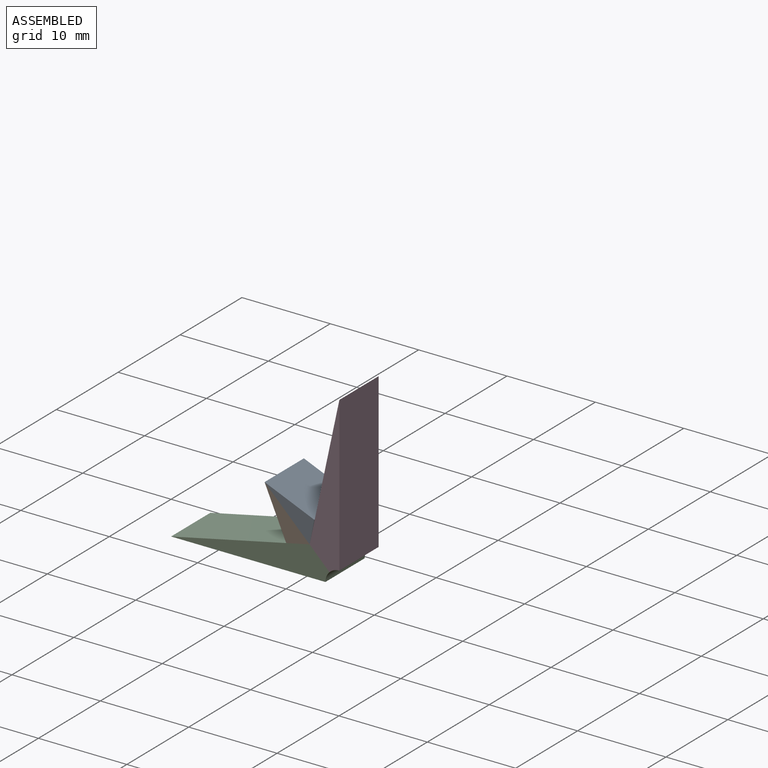
[diagram: assembled view]
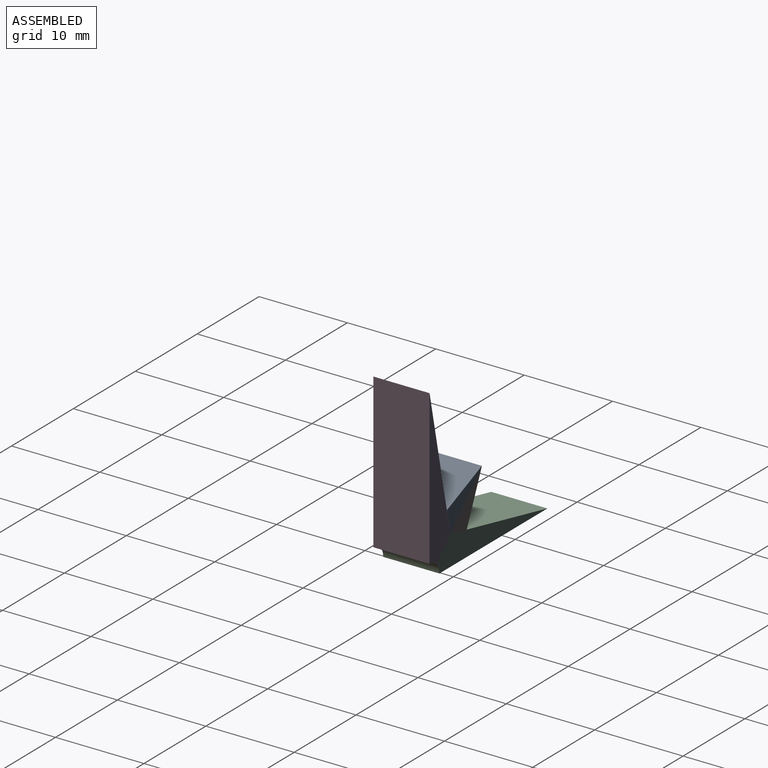
[diagram: assembled view, second angle]
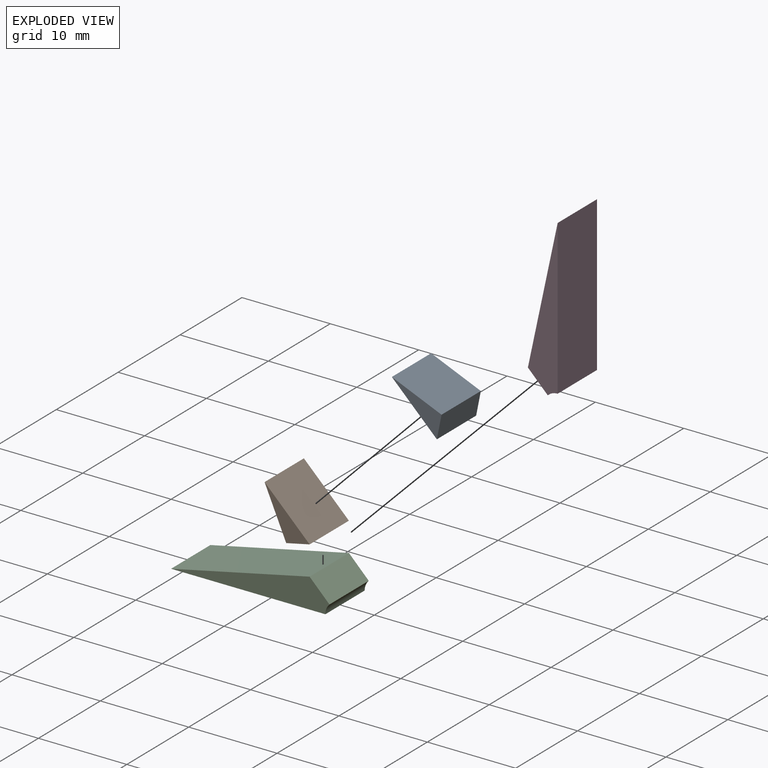
[diagram: exploded view]
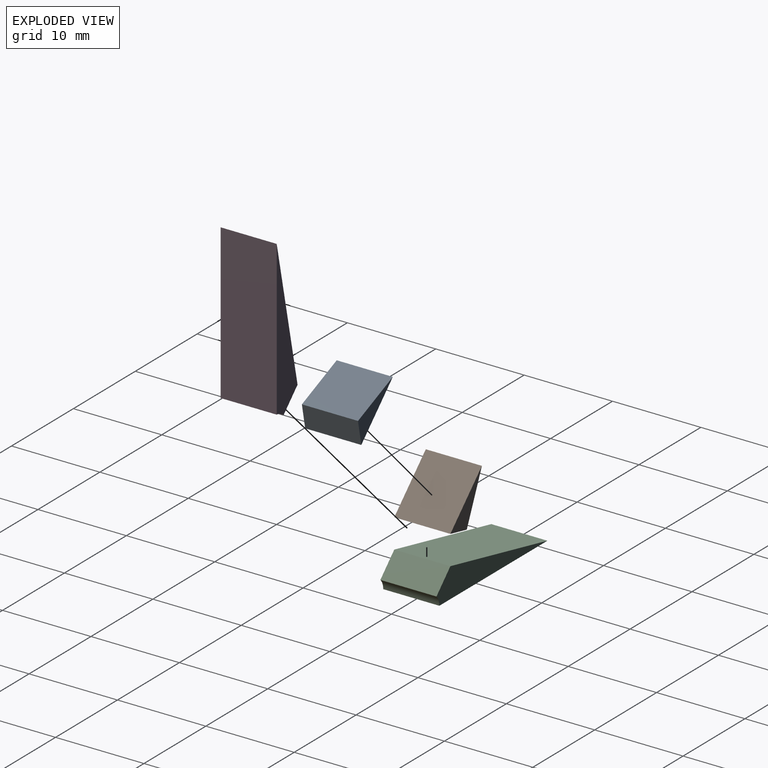
[diagram: exploded view, second angle]
ASSEMBLY  parts=4 mates=3
PART A: 5 faces, bbox 5.1x6.4x5.6 mm
  f0: plane 6.35x2.65mm, normal (0.2,0,-0.98), area 17.2mm2, adj f1,f2,f3,f4
  f1: plane 6.35x5.06mm, normal (0.71,0,0.71), area 45.4mm2, adj f0,f2,f3,f4
  f2: plane 6.35x5.61mm, normal (-0.92,0,-0.39), area 38.7mm2, adj f0,f1,f3,f4
  f3: plane 5.61x5.06mm, normal (0,-1,0), area 8.1mm2, adj f0,f1,f2
  f4: plane 5.61x5.06mm, normal (0,1,0), area 8.1mm2, adj f0,f1,f2
PART B: same geometry as A
PART C: 6 faces, bbox 3.4x6.4x17.9 mm
  f0: plane 15.68x6.35mm, normal (-0.98,0,0.21), area 101.9mm2, adj f1,f3,f4,f5
  f1: plane 6.35x2.25mm, normal (-0.71,0,-0.71), area 20.2mm2, adj f0,f2,f4,f5
  f2: cylinder r=1.59mm len=6.35mm, axis (0,1,0), area 7.9mm2, adj f1,f3,f4,f5
  f3: plane 17.46x6.35mm, normal (1,0,0), area 110.9mm2, adj f0,f2,f4,f5
  f4: plane 17.93x3.37mm, normal (0,-1,0), area 31.1mm2, adj f0,f1,f2,f3
  f5: plane 17.93x3.37mm, normal (0,1,0), area 31.1mm2, adj f0,f1,f2,f3
PART D: same geometry as C
PLACE A rot(axis=(-0.71,0,0.7),180deg) t=(-1.67,-23.22,-13.43)mm
PLACE B rot(axis=(0,-1,0),0.5deg) t=(-1.67,-16.87,-13.42)mm
PLACE C rot(axis=(-0.71,0,0.71),180deg) t=(-1.7,-23.22,-13.45)mm
PLACE D t=(-1.7,-16.87,-13.45)mm
MATE fastened C.f1 <-> D.f1  axis (0.71,0,0.71) through (-3.94,-20.05,-11.21)mm
MATE fastened B.f0 <-> C.f0  axis (0.21,0,-0.98) through (-6.39,-20.05,-10.37)mm
MATE fastened A.f1 <-> B.f1  axis (-0.7,0,-0.71) through (-7.61,-20.05,-7.58)mm
